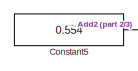
[diagram: root canvas - part 1/3, top right region]
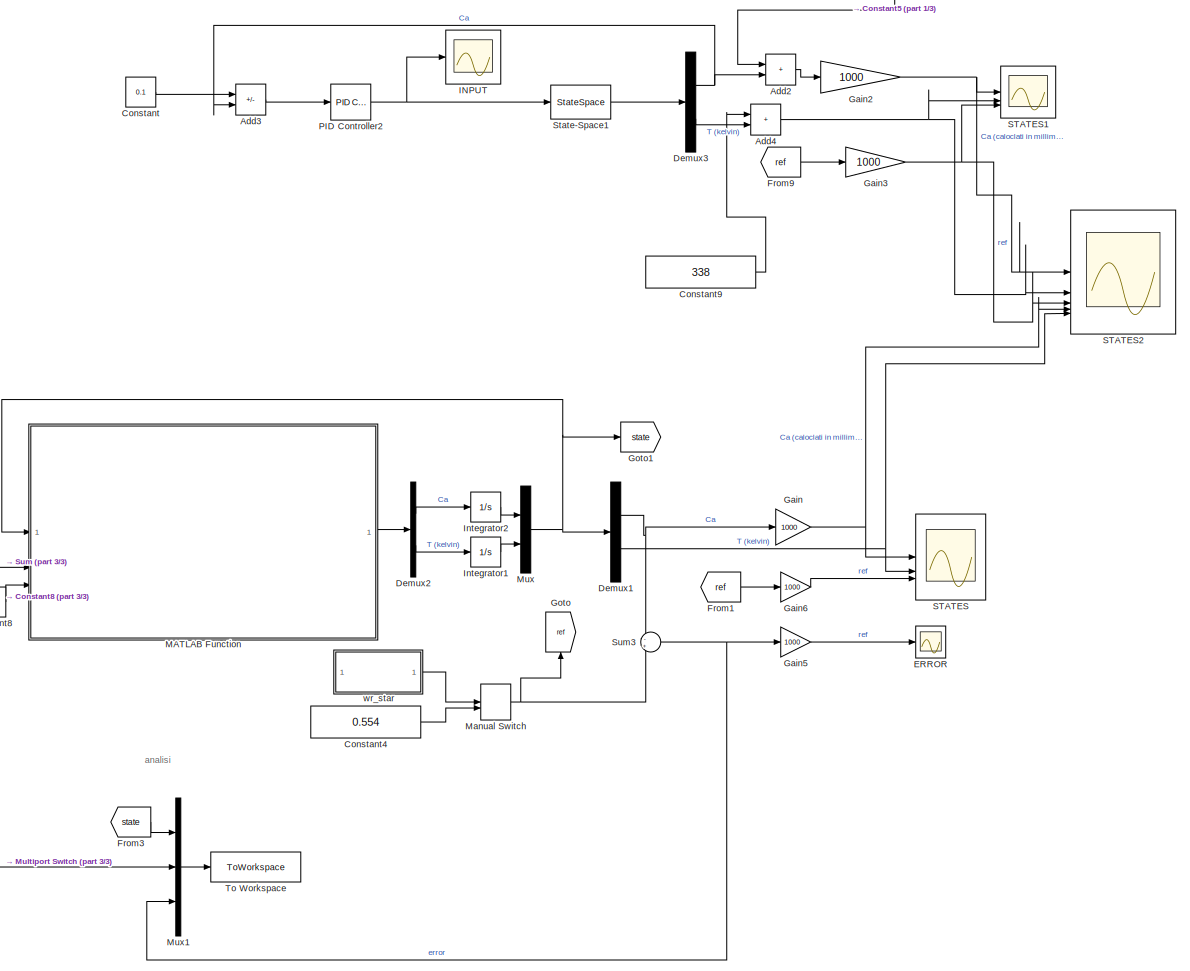
[diagram: root canvas - part 2/3, right side, full height]
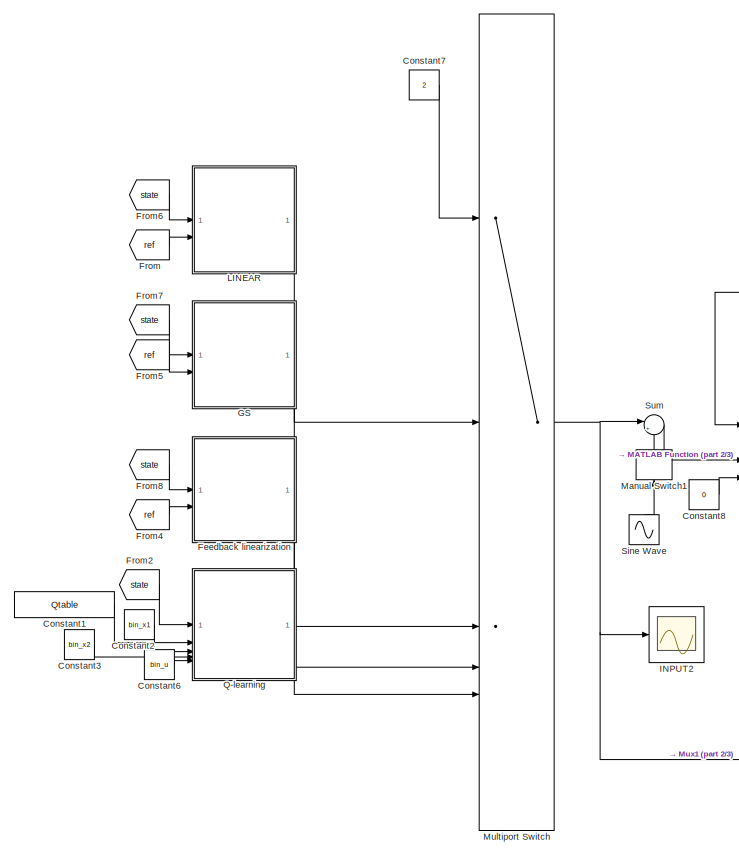
[diagram: root canvas - part 3/3, left side, full height]
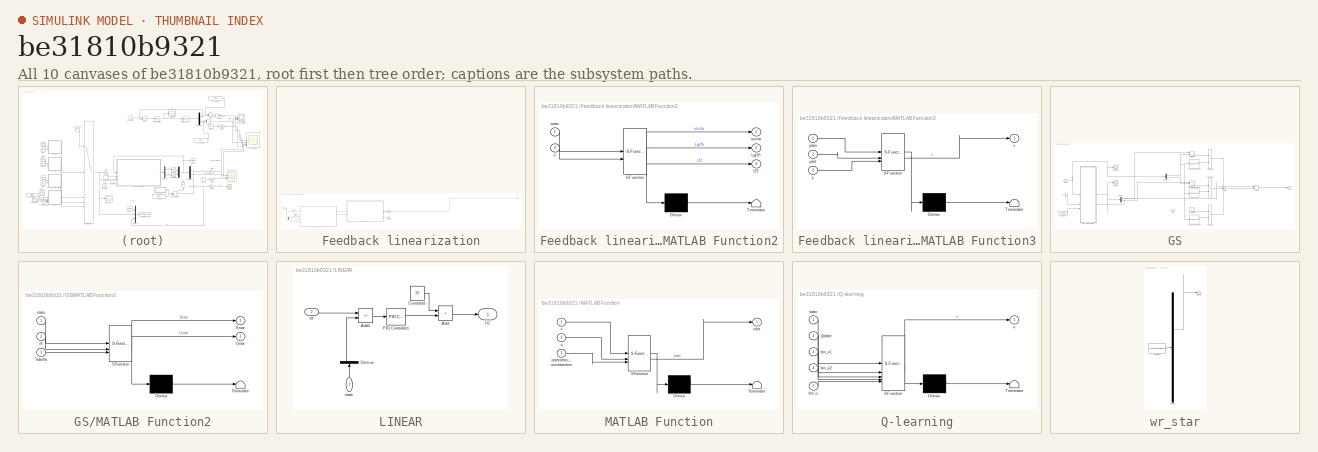
[diagram: thumbnail index - all 10 canvases of the model, root first then tree order]
MODEL slx_be31810b9321
KIND model
CONFIG AbsTol = auto
CONFIG EnableMultiTasking = off
CONFIG FixedStep = 0.1
CONFIG MaxStep = auto
CONFIG MinStep = auto
CONFIG RelTol = 1e-3
CONFIG SampleTimeConstraint = Unconstrained
CONFIG SolverName = VariableStepAuto
CONFIG StartTime = 0.0
CONFIG StopTime = 15
BLOCK [Sum] Add2
  Commented = on
  IconShape = rectangular
BLOCK [Sum] Add3
  Commented = on
  IconShape = rectangular
  Inputs = +-
BLOCK [Sum] Add4
  Commented = on
  IconShape = rectangular
BLOCK [Constant] Constant
  Commented = on
  Value = 0.1
BLOCK [Constant] Constant1
  Value = Qtable
BLOCK [Constant] Constant2
  Value = bin_x1
BLOCK [Constant] Constant3
  Value = bin_x2
BLOCK [Constant] Constant4
  Value = 0.554
BLOCK [Constant] Constant5
  Commented = on
  Value = 0.554
BLOCK [Constant] Constant6
  Value = bin_u
BLOCK [Constant] Constant7
  Value = 2
BLOCK [Constant] Constant8
  Value = 0
BLOCK [Constant] Constant9
  Commented = on
  Value = 338
BLOCK [Demux] Demux1
  Outputs = 2
BLOCK [Demux] Demux2
  Outputs = 2
BLOCK [Demux] Demux3
  Commented = on
  Outputs = 2
BLOCK [Scope] ERROR
  Floating = off
  NumInputPorts = 1
  ScopeSpecificationString = Simulink.scopes.TimeScopeBlockCfg('CurrentConfiguration', extmgr.ConfigurationSet(extmgr.Configuration('Core','General UI',true),extmgr.Configuration('Core','Source UI',true),extmgr.Configuration('Sources','WiredSimulink',true,'DataLoggingVariableName','ScopeData11'),extmgr.Configuration('Visuals','Time Domain',true,'SerializedDisplays',{struct('MinYLimReal','-511.51538','MaxYLimReal','143.63843',...<+1543ch>
BLOCK [SubSystem] Feedback linearization
  Commented = on
BLOCK [Demux] Feedback linearization/Demux
  Outputs = 2
BLOCK [Derivative] Feedback linearization/Derivative
BLOCK [SubSystem] Feedback linearization/MATLAB Function2
  ErrorFcn = Stateflow.Translate.translate
  PermitHierarchicalResolution = ExplicitOnly
  SFBlockType = MATLAB Function
  TreatAsAtomicUnit = on
BLOCK [Demux] Feedback linearization/MATLAB Function2/ Demux 
  Outputs = 1
BLOCK [S-Function] Feedback linearization/MATLAB Function2/ SFunction 
  EnableBusSupport = on
  FunctionName = sf_sfun
  PortCounts = [2 4]
  SFcnIsStateOwnerBlock = off
  SFunctionDeploymentMode = off
  Tag = Stateflow S-Function 3
BLOCK [Terminator] Feedback linearization/MATLAB Function2/ Terminator 
BLOCK [Outport] Feedback linearization/MATLAB Function2/Lf2
  Port = 3
BLOCK [Outport] Feedback linearization/MATLAB Function2/LgLfh
  Port = 2
BLOCK [Inport] Feedback linearization/MATLAB Function2/stato
BLOCK [Outport] Feedback linearization/MATLAB Function2/uscita
BLOCK [Inport] Feedback linearization/MATLAB Function2/v
  Port = 2
BLOCK [SubSystem] Feedback linearization/MATLAB Function3
  ErrorFcn = Stateflow.Translate.translate
  PermitHierarchicalResolution = ExplicitOnly
  SFBlockType = MATLAB Function
  TreatAsAtomicUnit = on
BLOCK [Demux] Feedback linearization/MATLAB Function3/ Demux 
  Outputs = 1
BLOCK [S-Function] Feedback linearization/MATLAB Function3/ SFunction 
  EnableBusSupport = on
  FunctionName = sf_sfun
  PortCounts = [3 2]
  SFcnIsStateOwnerBlock = off
  SFunctionDeploymentMode = off
  Tag = Stateflow S-Function 4
BLOCK [Terminator] Feedback linearization/MATLAB Function3/ Terminator 
BLOCK [Outport] Feedback linearization/MATLAB Function3/v
BLOCK [Inport] Feedback linearization/MATLAB Function3/y
  Port = 3
BLOCK [Inport] Feedback linearization/MATLAB Function3/ydes
BLOCK [Inport] Feedback linearization/MATLAB Function3/ydot
  Port = 2
BLOCK [Scope] Feedback linearization/Scope2
  Floating = off
  NumInputPorts = 1
  ScopeSpecificationString = Simulink.scopes.TimeScopeBlockCfg('CurrentConfiguration', extmgr.ConfigurationSet(extmgr.Configuration('Core','General UI',true),extmgr.Configuration('Core','Source UI',true),extmgr.Configuration('Sources','WiredSimulink',true,'DataLoggingVariableName','ScopeData2'),extmgr.Configuration('Visuals','Time Domain',true,'SerializedDisplays',{struct('MinYLimReal','-2.92109','MaxYLimReal','0.73121','YLab...<+1570ch>
BLOCK [Scope] Feedback linearization/Scope5
  Floating = off
  NumInputPorts = 1
  ScopeSpecificationString = Simulink.scopes.TimeScopeBlockCfg('CurrentConfiguration', extmgr.ConfigurationSet(extmgr.Configuration('Core','General UI',true),extmgr.Configuration('Core','Source UI',true),extmgr.Configuration('Sources','WiredSimulink',true,'DataLoggingVariableName','ScopeData3'),extmgr.Configuration('Visuals','Time Domain',true,'SerializedDisplays',{struct('MinYLimReal','-4713.7753','MaxYLimReal','1474.30837',...<+1573ch>
BLOCK [Inport] Feedback linearization/stato
  NameLocation = top
BLOCK [Outport] Feedback linearization/u
BLOCK [Inport] Feedback linearization/ydes
  Port = 2
BLOCK [From] From
  GotoTag = ref
BLOCK [From] From1
  GotoTag = ref
BLOCK [From] From2
  GotoTag = state
BLOCK [From] From3
  GotoTag = state
BLOCK [From] From4
  Commented = on
  GotoTag = ref
BLOCK [From] From5
  GotoTag = ref
BLOCK [From] From6
  GotoTag = state
BLOCK [From] From7
  GotoTag = state
BLOCK [From] From8
  Commented = on
  GotoTag = state
BLOCK [From] From9
  Commented = on
  GotoTag = ref
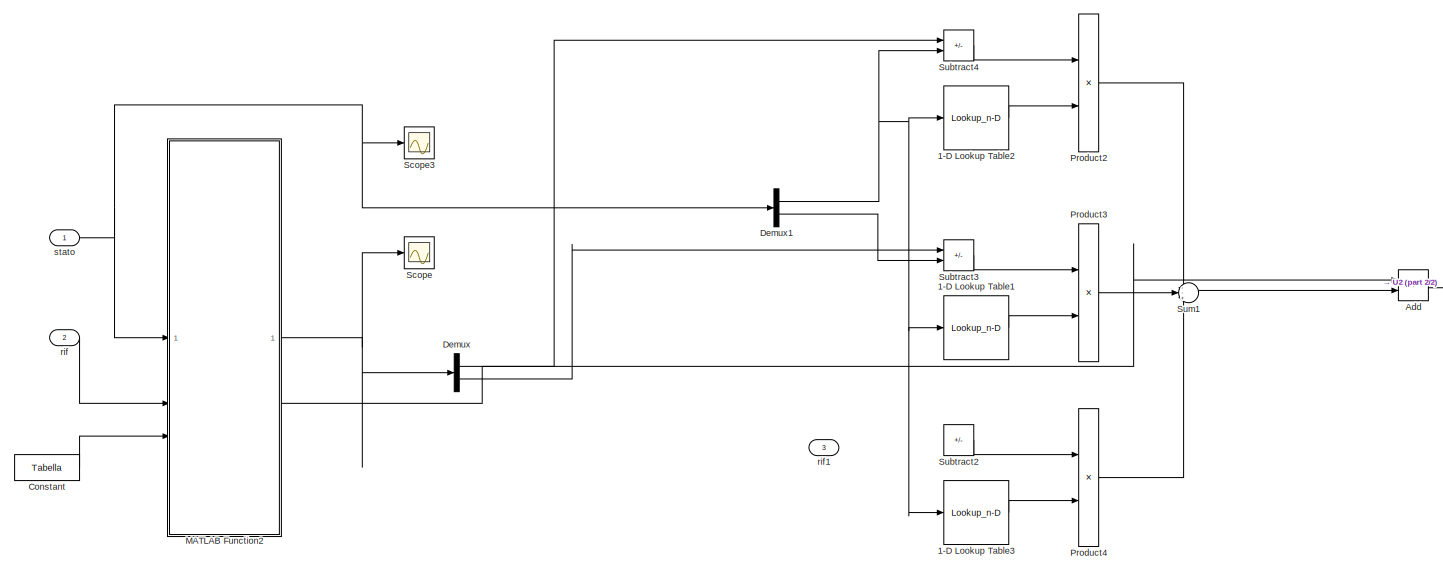
[diagram: GS - part 1/2, most of the canvas]
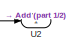
[diagram: GS - part 2/2, middle right region]
BLOCK [SubSystem] GS
BLOCK [Lookup_n-D] GS/1-D Lookup Table1
  BreakpointsForDimension1 = flip(Tabella(:,2))
  InputPortMap = u0
  InternalRulePriority = Speed
  NumberOfTableDimensions = 1
  RndMeth = Simplest
  Table = flip((Tabella(:,5)))
BLOCK [Lookup_n-D] GS/1-D Lookup Table2
  BreakpointsForDimension1 = flip(Tabella(:,2))
  InputPortMap = u0
  InternalRulePriority = Speed
  NumberOfTableDimensions = 1
  RndMeth = Simplest
  Table = flip((Tabella(:,4)))
BLOCK [Lookup_n-D] GS/1-D Lookup Table3
  BreakpointsForDimension1 = flip(Tabella(:,2))
  InputPortMap = u0
  InternalRulePriority = Speed
  NumberOfTableDimensions = 1
  RndMeth = Simplest
  Table = flip((Tabella(:,6)))
BLOCK [Sum] GS/Add
  IconShape = rectangular
BLOCK [Constant] GS/Constant
  Value = Tabella
BLOCK [Demux] GS/Demux
  Outputs = 2
BLOCK [Demux] GS/Demux1
  Outputs = 2
BLOCK [SubSystem] GS/MATLAB Function2
  ErrorFcn = Stateflow.Translate.translate
  PermitHierarchicalResolution = ExplicitOnly
  SFBlockType = MATLAB Function
  TreatAsAtomicUnit = on
BLOCK [Demux] GS/MATLAB Function2/ Demux 
  Outputs = 1
BLOCK [S-Function] GS/MATLAB Function2/ SFunction 
  EnableBusSupport = on
  FunctionName = sf_sfun
  PortCounts = [3 3]
  SFcnIsStateOwnerBlock = off
  SFunctionDeploymentMode = off
  Tag = Stateflow S-Function 5
BLOCK [Terminator] GS/MATLAB Function2/ Terminator 
BLOCK [Inport] GS/MATLAB Function2/Tabella
  Port = 3
BLOCK [Outport] GS/MATLAB Function2/Ustar
  Port = 2
BLOCK [Outport] GS/MATLAB Function2/Xstar
BLOCK [Inport] GS/MATLAB Function2/rif
  Port = 2
BLOCK [Inport] GS/MATLAB Function2/stato
BLOCK [Product] GS/Product2
BLOCK [Product] GS/Product3
BLOCK [Product] GS/Product4
BLOCK [Scope] GS/Scope
  Floating = off
  NumInputPorts = 1
  ScopeSpecificationString = Simulink.scopes.TimeScopeBlockCfg('CurrentConfiguration', extmgr.ConfigurationSet(extmgr.Configuration('Core','General UI',true),extmgr.Configuration('Core','Source UI',true),extmgr.Configuration('Sources','WiredSimulink',true,'DataLoggingVariableName','ScopeData4'),extmgr.Configuration('Visuals','Time Domain',true,'SerializedDisplays',{struct('MinYLimReal','0.88993','MaxYLimReal','0.89787','YLabe...<+1541ch>
BLOCK [Scope] GS/Scope3
  Floating = off
  NumInputPorts = 1
  ScopeSpecificationString = Simulink.scopes.TimeScopeBlockCfg('CurrentConfiguration', extmgr.ConfigurationSet(extmgr.Configuration('Core','General UI',true),extmgr.Configuration('Core','Source UI',true),extmgr.Configuration('Sources','WiredSimulink',true,'DataLoggingVariableName','ScopeData3'),extmgr.Configuration('Visuals','Time Domain',true),extmgr.Configuration('Tools','Plot Navigation',true),extmgr.Configuration('Tools',...<+40ch>
BLOCK [Sum] GS/Subtract2
  IconShape = rectangular
  Inputs = +-
BLOCK [Sum] GS/Subtract3
  IconShape = rectangular
  Inputs = +-
BLOCK [Sum] GS/Subtract4
  IconShape = rectangular
  Inputs = +-
BLOCK [Sum] GS/Sum1
  Inputs = --+
BLOCK [Outport] GS/U2
BLOCK [Inport] GS/rif
  Port = 2
BLOCK [Inport] GS/rif1
  Port = 3
BLOCK [Inport] GS/stato
BLOCK [Gain] Gain
  Gain = 1000
BLOCK [Gain] Gain2
  Commented = on
  Gain = 1000
BLOCK [Gain] Gain3
  Commented = on
  Gain = 1000
BLOCK [Gain] Gain5
  Gain = 1000
BLOCK [Gain] Gain6
  Gain = 1000
BLOCK [Goto] Goto
  GotoTag = ref
  NameLocation = right
BLOCK [Goto] Goto1
  GotoTag = state
BLOCK [Scope] INPUT
  Commented = on
  Floating = off
  NumInputPorts = 1
  ScopeSpecificationString = Simulink.scopes.TimeScopeBlockCfg('CurrentConfiguration', extmgr.ConfigurationSet(extmgr.Configuration('Core','General UI',true,'FigureColor',[0 0 0]),extmgr.Configuration('Core','Source UI',true),extmgr.Configuration('Sources','WiredSimulink',true,'DataLoggingVariableName','ScopeData1'),extmgr.Configuration('Visuals','Time Domain',true,'SerializedDisplays',{struct('MinYLimReal','-0.90974','MaxYLi...<+2513ch>
BLOCK [Scope] INPUT2
  Floating = off
  NumInputPorts = 1
  ScopeSpecificationString = Simulink.scopes.TimeScopeBlockCfg('CurrentConfiguration', extmgr.ConfigurationSet(extmgr.Configuration('Core','General UI',true,'FigureColor',[0 0 0]),extmgr.Configuration('Core','Source UI',true),extmgr.Configuration('Sources','WiredSimulink',true,'DataLoggingVariableName','ScopeData1'),extmgr.Configuration('Visuals','Time Domain',true,'SerializedDisplays',{struct('MinYLimReal','-47.3994','MaxYLi...<+2532ch>
BLOCK [Integrator] Integrator1
  InitialCondition = 350
BLOCK [Integrator] Integrator2
  InitialCondition = 1
BLOCK [SubSystem] LINEAR
BLOCK [Sum] LINEAR/Add
  IconShape = rectangular
BLOCK [Sum] LINEAR/Add1
  IconShape = rectangular
  Inputs = +-
BLOCK [Constant] LINEAR/Constant2
  Value = 20
BLOCK [Demux] LINEAR/Demux
  NameLocation = right
  Outputs = 2
BLOCK [Reference] LINEAR/PID Controller1  REF=slpidlib/PID Controller
  LibrarySourceBlock = simulink/Continuous/PID Controller
  SourceBlock = slpidlib/PID Controller
  SourceType = PID 1dof
BLOCK [Outport] LINEAR/U1
BLOCK [Inport] LINEAR/ref
  NameLocation = top
  Port = 2
BLOCK [Inport] LINEAR/state
  NameLocation = left
BLOCK [SubSystem] MATLAB Function
  ErrorFcn = Stateflow.Translate.translate
  PermitHierarchicalResolution = ExplicitOnly
  SFBlockType = MATLAB Function
  SystemSampleTime = 0.0001
  TreatAsAtomicUnit = on
BLOCK [Demux] MATLAB Function/ Demux 
  Outputs = 1
BLOCK [S-Function] MATLAB Function/ SFunction 
  EnableBusSupport = on
  FunctionName = sf_sfun
  PortCounts = [3 2]
  SFcnIsStateOwnerBlock = off
  SFunctionDeploymentMode = off
  Tag = Stateflow S-Function 2
BLOCK [Terminator] MATLAB Function/ Terminator 
BLOCK [Inport] MATLAB Function/parametric_uncertainties
  Port = 3
BLOCK [Inport] MATLAB Function/u
  Port = 2
BLOCK [Inport] MATLAB Function/x
BLOCK [Outport] MATLAB Function/xdot
BLOCK [ManualSwitch] Manual Switch
  CurrentSetting = 0
BLOCK [ManualSwitch] Manual Switch1
  CurrentSetting = 0
  NameLocation = right
BLOCK [MultiPortSwitch] Multiport Switch
  InputSameDT = off
  Inputs = 5
  SaturateOnIntegerOverflow = off
BLOCK [Mux] Mux
  DisplayOption = bar
  Inputs = 2
BLOCK [Mux] Mux1
  DisplayOption = bar
  Inputs = 3
BLOCK [Reference] PID Controller2  REF=slpidlib/PID Controller
  Commented = on
  LibrarySourceBlock = simulink/Continuous/PID Controller
  SourceBlock = slpidlib/PID Controller
  SourceType = PID 1dof
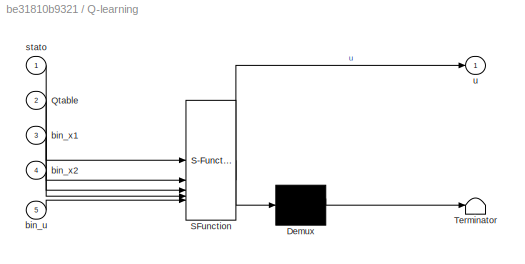
BLOCK [SubSystem] Q-learning
  ErrorFcn = Stateflow.Translate.translate
  PermitHierarchicalResolution = ExplicitOnly
  SFBlockType = MATLAB Function
  SystemSampleTime = 0.0001
  TreatAsAtomicUnit = on
BLOCK [Demux] Q-learning/ Demux 
  Outputs = 1
BLOCK [S-Function] Q-learning/ SFunction 
  EnableBusSupport = on
  FunctionName = sf_sfun
  PortCounts = [5 2]
  SFcnIsStateOwnerBlock = off
  SFunctionDeploymentMode = off
  Tag = Stateflow S-Function 6
BLOCK [Terminator] Q-learning/ Terminator 
BLOCK [Inport] Q-learning/Qtable
  Port = 2
BLOCK [Inport] Q-learning/bin_u
  Port = 5
BLOCK [Inport] Q-learning/bin_x1
  Port = 3
BLOCK [Inport] Q-learning/bin_x2
  Port = 4
BLOCK [Inport] Q-learning/stato
BLOCK [Outport] Q-learning/u
BLOCK [Scope] STATES
  Floating = off
  NumInputPorts = 3
  ScopeSpecificationString = Simulink.scopes.TimeScopeBlockCfg('CurrentConfiguration', extmgr.ConfigurationSet(extmgr.Configuration('Core','General UI',true,'FigureColor',[0 0 0]),extmgr.Configuration('Core','Source UI',true),extmgr.Configuration('Sources','WiredSimulink',true,'DataLoggingVariableName','ScopeData2'),extmgr.Configuration('Visuals','Time Domain',true,'SerializedDisplays',{struct('MinYLimReal','253.72856','MaxYL...<+2015ch>
BLOCK [Scope] STATES1
  Commented = on
  Floating = off
  NumInputPorts = 3
  ScopeSpecificationString = Simulink.scopes.TimeScopeBlockCfg('CurrentConfiguration', extmgr.ConfigurationSet(extmgr.Configuration('Core','General UI',true,'FigureColor',[0 0 0]),extmgr.Configuration('Core','Source UI',true),extmgr.Configuration('Sources','WiredSimulink',true,'DataLoggingVariableName','ScopeData1'),extmgr.Configuration('Visuals','Time Domain',true,'SerializedDisplays',{struct('MinYLimReal','297.14338','MaxYL...<+1992ch>
BLOCK [Scope] STATES2
  Commented = on
  Floating = off
  NumInputPorts = 5
  ScopeSpecificationString = Simulink.scopes.TimeScopeBlockCfg('CurrentConfiguration', extmgr.ConfigurationSet(extmgr.Configuration('Core','General UI',true,'FigureColor',[0 0 0]),extmgr.Configuration('Core','Source UI',true),extmgr.Configuration('Sources','WiredSimulink',true,'DataLoggingVariableName','ScopeData1'),extmgr.Configuration('Visuals','Time Domain',true,'SerializedDisplays',{struct('MinYLimReal','548.48158','MaxYL...<+2239ch>
BLOCK [Sin] Sine Wave
  Amplitude = 5
  Frequency = 10
  NameLocation = right
  SampleTime = 0
BLOCK [StateSpace] State-Space1
  A = A
  B = B
  C = eye(2)
  Commented = on
  D = [0 0 ]'
  InitialCondition = [0.1;0]
BLOCK [Sum] Sum
  Inputs = |++
BLOCK [Sum] Sum3
  Inputs = -+
BLOCK [ToWorkspace] To Workspace
  FixptAsFi = on
  MaxDataPoints = inf
  SampleTime = -1
  VariableName = simout
BLOCK [SubSystem] wr_star
  ClipboardFcn = sigbuilder_block('clipboard');
  CloseFcn = sigbuilder_block('close');
  ContinueFcn = sigbuilder_block('continue');
  CopyFcn = sigbuilder_block('copy');
  DeleteFcn = sigbuilder_block('delete');
  LoadFcn = sigbuilder_block('load');
  MaskHideContents = on
  ModelCloseFcn = sigbuilder_block('modelClose');
  NameChangeFcn = sigbuilder_block('namechange');
  OpenFcn = sigbuilder_block('open',[340 222 1141 580.5 ]);
  PauseFcn = sigbuilder_block('pause');
  PreSaveFcn = sigbuilder_block('preSave');
  StartFcn = sigbuilder_block('start');
  StopFcn = sigbuilder_block('stop');
  Tag = STV Subsys
BLOCK [Demux] wr_star/Demux
  DisplayOption = none
  Outputs = 1
  Tag = STV Demux
BLOCK [FromWorkspace] wr_star/FromWs
  Tag = STV FromWs
  VariableName = tuvar
BLOCK [Outport] wr_star/Signal 1
  Tag = STV Outport
  VectorParamsAs1DForOutWhenUnconnected = off
ANNOTATION (root): analisi
LINE Add2:1 -> Gain2:1
LINE Add3:1 -> PID Controller2:1
NET Add4:1 -> STATES1:2, STATES2:2
LINE Constant1:1 -> Q-learning:2
LINE Constant2:1 -> Q-learning:3
LINE Constant3:1 -> Q-learning:4
LINE Constant4:1 -> Manual Switch:2
LINE Constant5:1 -> Add2:1
LINE Constant6:1 -> Q-learning:5
LINE Constant7:1 -> Multiport Switch:1
LINE Constant8:1 -> MATLAB Function:3
LINE Constant9:1 -> Add4:1
LINE Constant:1 -> Add3:1
NET Demux1:1 -> Gain:1, Sum3:1
NET Demux1:2 -> STATES2:5, STATES:2
LINE Demux2:1 -> Integrator2:1
LINE Demux2:2 -> Integrator1:1
NET Demux3:1 -> Add2:2, Add3:2
LINE Demux3:2 -> Add4:2
NET Feedback linearization/Demux:1 -> Feedback linearization/Derivative:1, Feedback linearization/MATLAB Function3:3
LINE Feedback linearization/Derivative:1 -> Feedback linearization/MATLAB Function3:2
LINE Feedback linearization/MATLAB Function2:1 -> Feedback linearization/u:1
LINE Feedback linearization/MATLAB Function2:2 -> Feedback linearization/Scope2:1
LINE Feedback linearization/MATLAB Function2:3 -> Feedback linearization/Scope5:1
LINE Feedback linearization/MATLAB Function3:1 -> Feedback linearization/MATLAB Function2:2
NET Feedback linearization/stato:1 -> Feedback linearization/Demux:1, Feedback linearization/MATLAB Function2:1
LINE Feedback linearization/ydes:1 -> Feedback linearization/MATLAB Function3:1
LINE Feedback linearization:1 -> Multiport Switch:4
LINE From1:1 -> Gain6:1
LINE From2:1 -> Q-learning:1
LINE From3:1 -> Mux1:1
LINE From4:1 -> Feedback linearization:2
LINE From5:1 -> GS:2
LINE From6:1 -> LINEAR:1
LINE From7:1 -> GS:1
LINE From8:1 -> Feedback linearization:1
LINE From9:1 -> Gain3:1
LINE From:1 -> LINEAR:2
LINE GS/1-D Lookup Table1:1 -> GS/Product3:2
LINE GS/1-D Lookup Table2:1 -> GS/Product2:2
LINE GS/1-D Lookup Table3:1 -> GS/Product4:2
LINE GS/Add:1 -> GS/U2:1
LINE GS/Constant:1 -> GS/MATLAB Function2:3
NET GS/Demux1:1 -> GS/1-D Lookup Table1:1, GS/1-D Lookup Table2:1, GS/1-D Lookup Table3:1, GS/Subtract4:2
LINE GS/Demux1:2 -> GS/Subtract3:2
LINE GS/Demux:1 -> GS/Subtract4:1
LINE GS/Demux:2 -> GS/Subtract3:1
NET GS/MATLAB Function2:1 -> GS/Demux:1, GS/Scope:1
LINE GS/MATLAB Function2:2 -> GS/Add:1
LINE GS/Product2:1 -> GS/Sum1:1
LINE GS/Product3:1 -> GS/Sum1:2
LINE GS/Product4:1 -> GS/Sum1:3
LINE GS/Subtract2:1 -> GS/Product4:1
LINE GS/Subtract3:1 -> GS/Product3:1
LINE GS/Subtract4:1 -> GS/Product2:1
LINE GS/Sum1:1 -> GS/Add:2
LINE GS/rif:1 -> GS/MATLAB Function2:2
NET GS/stato:1 -> GS/Demux1:1, GS/MATLAB Function2:1, GS/Scope3:1
LINE GS:1 -> Multiport Switch:3
NET Gain2:1 -> STATES1:1, STATES2:1
NET Gain3:1 -> STATES1:3, STATES2:3
LINE Gain5:1 -> ERROR:1
LINE Gain6:1 -> STATES:3
NET Gain:1 -> STATES2:4, STATES:1
LINE Integrator1:1 -> Mux:2
LINE Integrator2:1 -> Mux:1
LINE LINEAR/Add1:1 -> LINEAR/PID Controller1:1
LINE LINEAR/Add:1 -> LINEAR/U1:1
LINE LINEAR/Constant2:1 -> LINEAR/Add:1
LINE LINEAR/Demux:1 -> LINEAR/Add1:2
LINE LINEAR/PID Controller1:1 -> LINEAR/Add:2
LINE LINEAR/ref:1 -> LINEAR/Add1:1
LINE LINEAR/state:1 -> LINEAR/Demux:1
LINE LINEAR:1 -> Multiport Switch:2
LINE MATLAB Function:1 -> Demux2:1
LINE Manual Switch1:1 -> Sum:2
NET Manual Switch:1 -> Goto:1, Sum3:2
NET Multiport Switch:1 -> INPUT2:1, Mux1:2, Sum:1
LINE Mux1:1 -> To Workspace:1
NET Mux:1 -> Demux1:1, Goto1:1, MATLAB Function:1
NET PID Controller2:1 -> INPUT:1, State-Space1:1
LINE Q-learning:1 -> Multiport Switch:5
LINE Sine Wave:1 -> Manual Switch1:1
LINE State-Space1:1 -> Demux3:1
NET Sum3:1 -> Gain5:1, Mux1:3
LINE Sum:1 -> MATLAB Function:2
LINE wr_star:1 -> Manual Switch:1
note: NET lines group one-source signal fan-out (src -> all destinations, sorted); 1:1 wires keep LINE
CHART MATLAB Function states=1 transitions=1
  STATE_LABEL 'eML_blk_kernel()'
  STATE_LABEL 'SCRIPT:\nfunction xdot  = model(x, u,parametric_uncertainties)\n  \nC_A = x(1); % Concentration of component A in outlet stream (mole/l)\nT = x(2); % Temperature of the reactants in the reactor (K)\nu; % Temperature of the coolant water in the jacket (K)\n\n% Reactor Parameters\nV = 50; % Reactor volume (l)\nF= 50; % Inlet volumetric flow rate to the reactor (l/min)\nC_A0 = 1; % Feed concentration of compon...<+1105ch>'
CHART Feedback linearization/MATLAB Function2 states=1 transitions=1
  STATE_LABEL 'eML_blk_kernel()'
  STATE_LABEL 'SCRIPT:\nfunction [uscita,LgLfh ,Lf2]= fcn(stato,v)\n\nx=stato(1);\ny=stato(2);\n\nV = 50; % Reactor volume (l)\nF= 50; % Inlet volumetric flow rate to the reactor (l/min)\nC_A0 = 1; % Feed concentration of component A (mole/l)\nK_0 = 7.8e10; % Pre-exponential factor (l/min)\nE_over_R = 8567; % Activation energy in the Arrhenius equation (Cal/mole)\nR = 1.987; % Universal gas constant (Cal/mole.K), assuming ...<+1145ch>'
CHART Feedback linearization/MATLAB Function3 states=1 transitions=1
  STATE_LABEL 'eML_blk_kernel()'
  STATE_LABEL 'SCRIPT:\nfunction v = fcn(ydes,ydot,y)\nkd=1;\nkp=1000;\nv=kd*(0-ydot)+kp*(ydes-y);'
CHART GS/MATLAB Function2 states=1 transitions=1
  STATE_LABEL 'eML_blk_kernel()'
  STATE_LABEL 'SCRIPT:\nfunction [Xstar,Ustar]  = gains_computation(stato,rif,Tabella)\n\n\n[~, idxgoal] = min(abs(Tabella(:,2) - rif));\n[~, idx1] = min(abs(Tabella(:,2) - stato(1)));\nif(idx1==idxgoal)\nidx1=idx1;\nelseif(idx1<idxgoal)\nidx1=idx1+1;\nelse\nidx1=idx1-1;\nend\n\nu=Tabella(idx1,1);\nC_A =   Tabella(idx1,2)    ;        % Concentration of component A in outlet stream (mole/l)\nT =    Tabella(idx1,3)   ;         % ...<+124ch>'
CHART Q-learning states=1 transitions=1
  STATE_LABEL 'eML_blk_kernel()'
  STATE_LABEL 'SCRIPT:\nfunction u  = fcn(stato,Qtable,bin_x1,bin_x2,bin_u)\n  \n\n    [~, yDiscrx1] = min(abs(stato(1) - bin_x1));\n    [~, yDiscrx2] = min(abs(stato(2) - bin_x2));\n    [~, act_idx] = max(Qtable(yDiscrx1,yDiscrx2,:)); % Pick always greedy action\n    u = bin_u(act_idx);\n\nend\n\n\n\n\n\n\n\n\n\n\n\n\n\n\n\n\n\n\n\n\n\n\n\n\n\n\n\n\n\n\n\n\n\n\n\n\n\n\n\n\n\n\n\n\n\n\n\n\n\n\n\n\n\n\n\n\n\n\n\n\n               \n \n\n'
CHART  states=0 transitions=0
CHART  states=0 transitions=0
CHART  states=0 transitions=0
CHART  states=0 transitions=0
CHART  states=0 transitions=0
